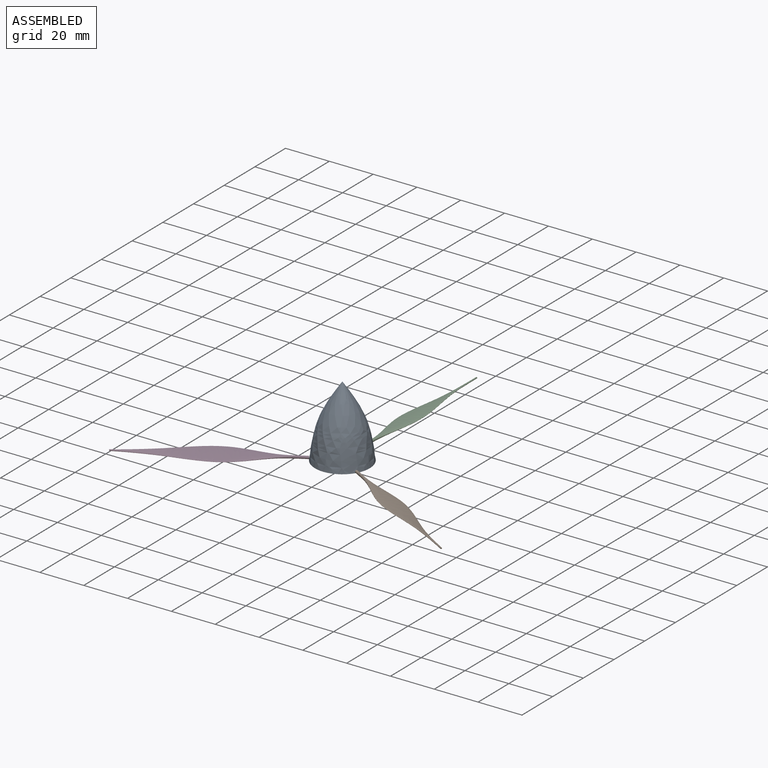
[diagram: assembled view]
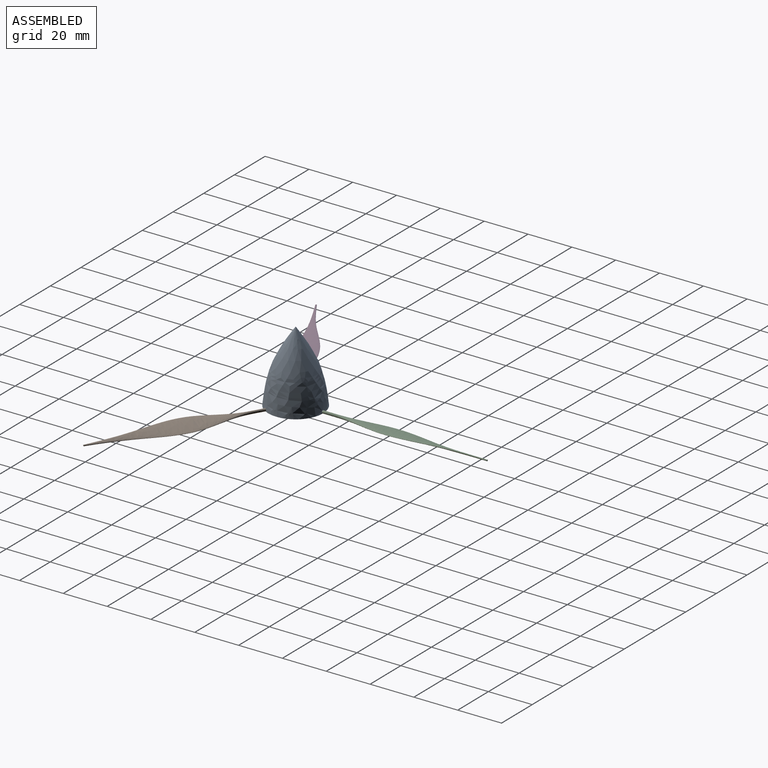
[diagram: assembled view, second angle]
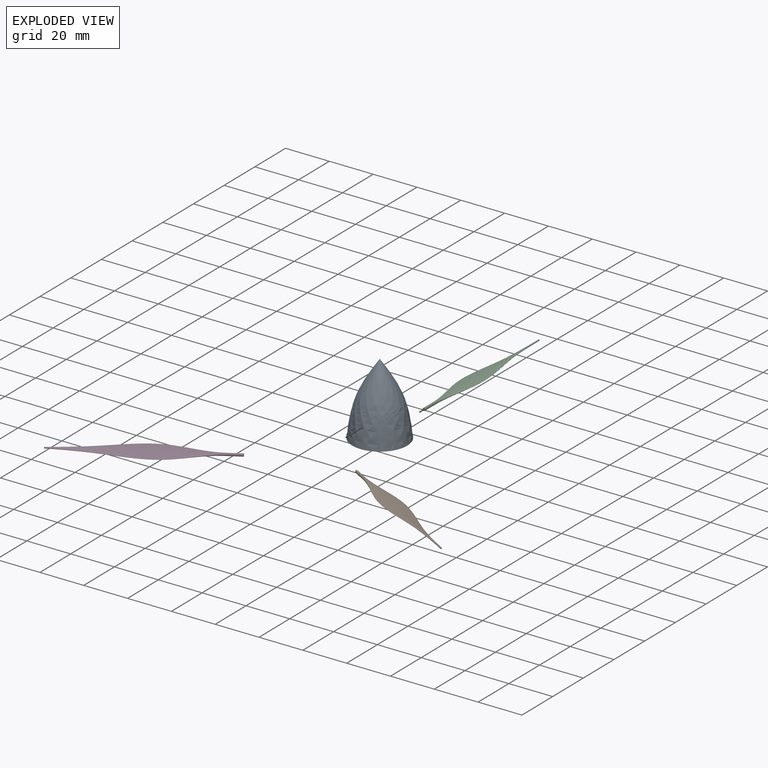
[diagram: exploded view]
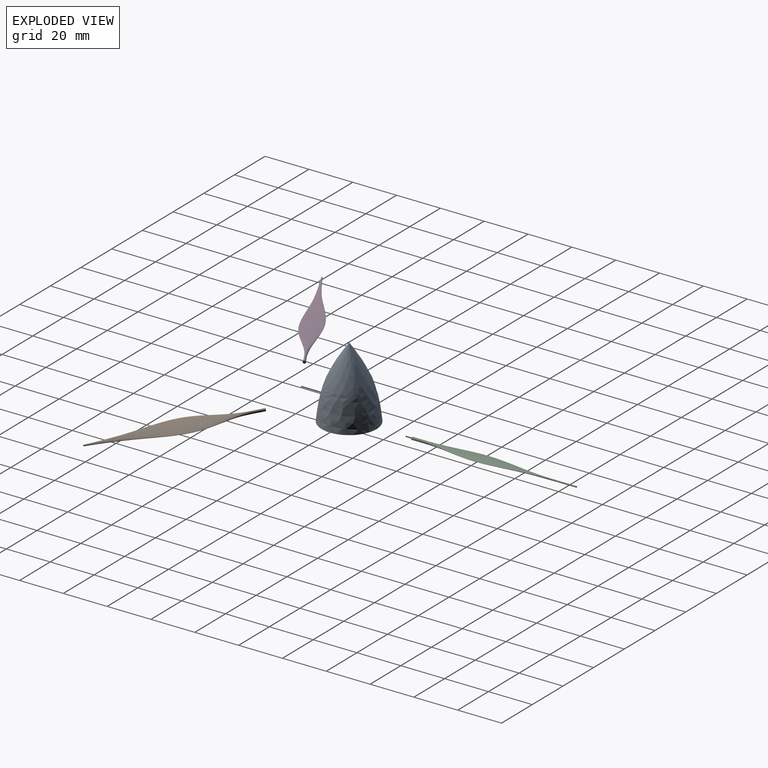
[diagram: exploded view, second angle]
ASSEMBLY  parts=4 mates=3
PART A: 8 faces, bbox 27.5x27.5x35 mm
  f0: plane 25x25mm, normal (0,0,-1), area 490.9mm2, adj f1
  f1: bspline ~32.5x25mm, area 1750.7mm2, adj f0,f2,f3
  f2: cylinder r=0.62mm len=1.25mm, axis (0,-1,0), area 0mm2, adj f1,f3
  f3: plane 1.25x1.25mm, normal (0,1,0), area 1.2mm2, adj f1,f2
  f4: cylinder r=0.62mm len=1.25mm, axis (-0.87,0.5,0), area 0mm2, adj f5
  f5: plane 3.75x3.58mm, normal (-0.87,0.5,0), area 1.2mm2, adj f4
  f6: cylinder r=0.62mm len=1.25mm, axis (0.87,0.5,0), area 0mm2, adj f7
  f7: plane 3.75x3.58mm, normal (0.87,0.5,0), area 1.2mm2, adj f6
PART B: 3 faces, bbox 75x15.6x2.7 mm
  f0: plane 1.25x1.25mm, normal (-1,0,0), area 1.2mm2, adj f2
  f1: plane 0.6x0.6mm, normal (1,0,0), area 0.3mm2, adj f2
  f2: bspline ~75x15.59mm, area 790.3mm2, adj f0,f1
PART C: same geometry as B
PART D: same geometry as B
PLACE A t=(0,0,-0.07)mm
PLACE B rot(axis=(0,0,-1),30deg) t=(10.83,-6.25,0.56)mm
PLACE C rot(axis=(0,0,1),90deg) t=(0,12.5,0.56)mm
PLACE D rot(axis=(0,0,-1),150deg) t=(-10.83,-6.25,0.56)mm
MATE fastened C.f0 <-> A.f2  axis (0,-1,0) through (0,12.5,0.56)mm
MATE fastened D.f0 <-> A.f6  axis (0.87,0.5,0) through (-10.83,-6.25,0.56)mm
MATE fastened B.f0 <-> A.f4  axis (-0.87,0.5,0) through (10.83,-6.25,0.56)mm
